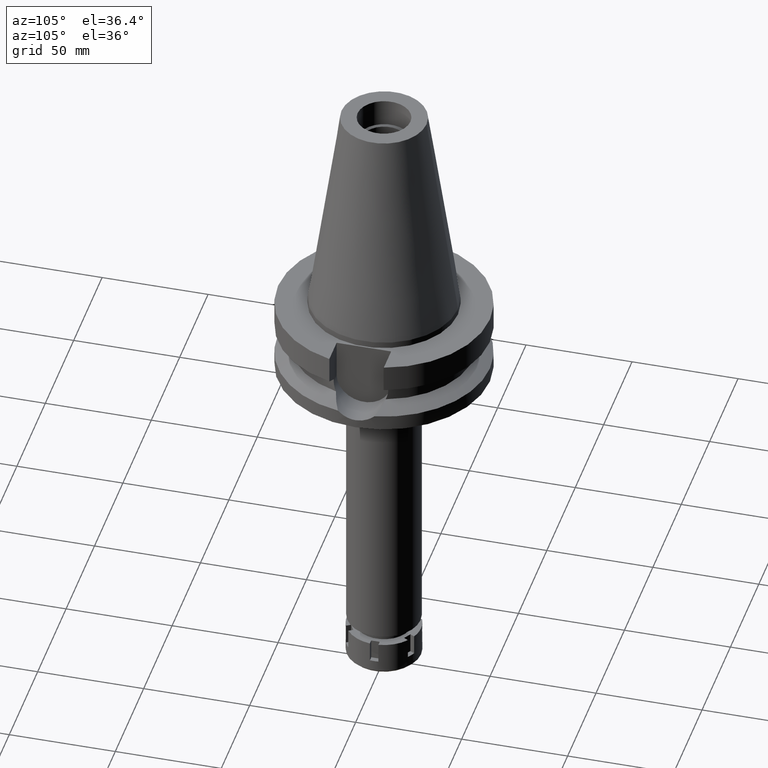
[diagram: clean part render]
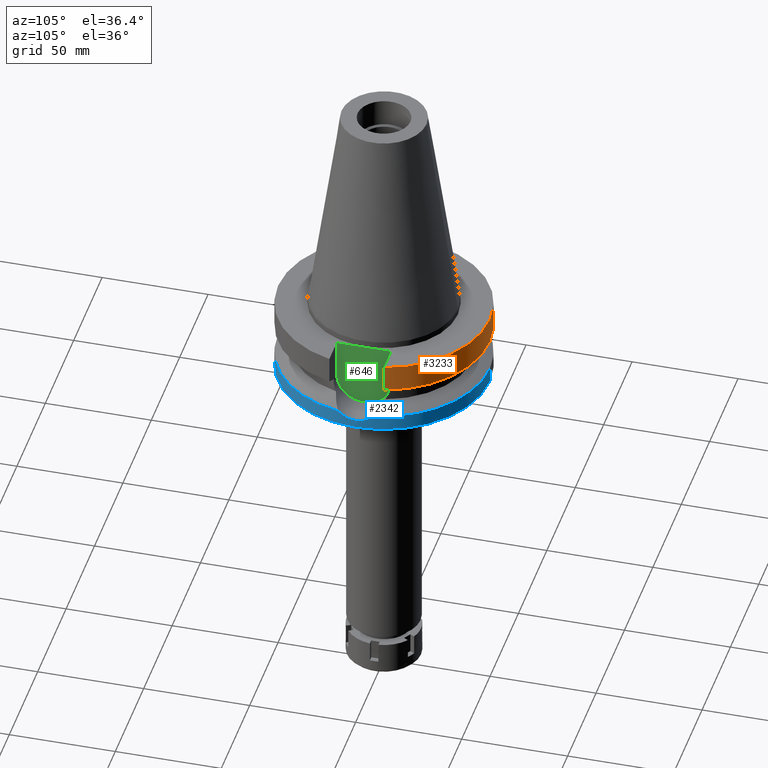
[diagram: same view with three faces highlighted in distinct colors, each labeled with its STEP entity id]
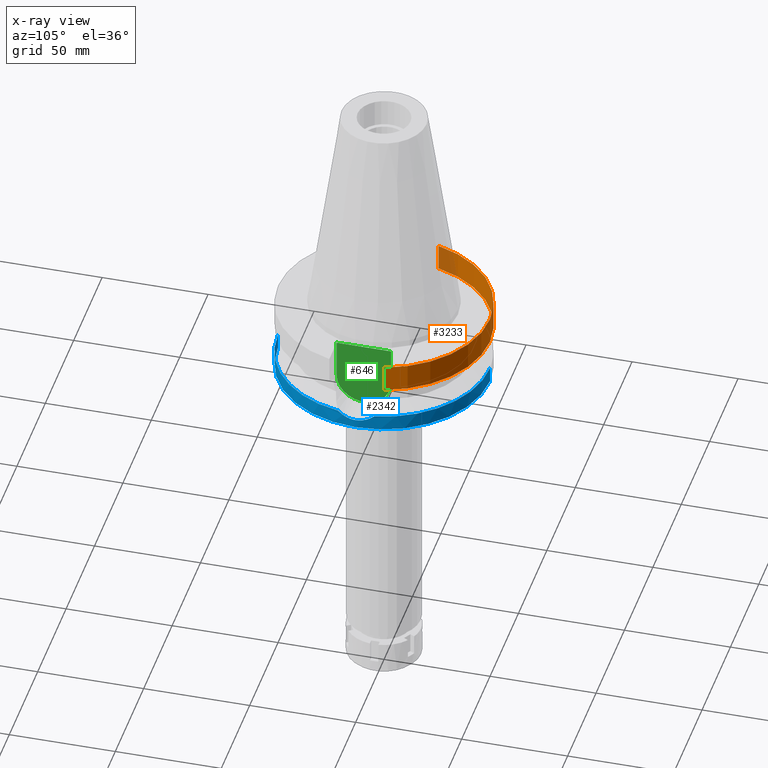
[diagram: x-ray of the same camera — body ghosted, the three highlighted faces saturated]
A machine part, auxiliary view with three faces highlighted in distinct colors.
The next image is the same camera in x-ray (body ghosted, the three faces saturated) — at least one of them is partly hidden behind the body in this view.
Their STEP definitions:

[orange] entity #3233 — the highlighted cylindrical surface (partial cylindrical patch) has radius 50 mm, axis along (0, 0, -1).
#74 = ORIENTED_EDGE ( 'NONE', *, *, #3637, .F. ) ;
#257 = CARTESIAN_POINT ( 'NONE',  ( 0.0000000000000000000, 2.651237855473999832E-14, -3.000000000000000000 ) ) ;
#475 = AXIS2_PLACEMENT_3D ( 'NONE', #2395, #619, #3532 ) ;
#539 = DIRECTION ( 'NONE',  ( 0.0000000000000000000, 0.0000000000000000000, -1.000000000000000000 ) ) ;
#583 = CARTESIAN_POINT ( 'NONE',  ( 48.32056912815000516, 12.85000385725999905, -15.66265768273000170 ) ) ;
#619 = DIRECTION ( 'NONE',  ( 0.0000000000000000000, 0.0000000000000000000, -1.000000000000000000 ) ) ;
#653 = ORIENTED_EDGE ( 'NONE', *, *, #3412, .T. ) ;
#658 = LINE ( 'NONE', #2091, #1279 ) ;
#725 = DIRECTION ( 'NONE',  ( 0.0000000000000000000, 1.000000000000000000, 0.0000000000000000000 ) ) ;
#900 = FACE_OUTER_BOUND ( 'NONE', #936, .T. ) ;
#936 = EDGE_LOOP ( 'NONE', ( #3657, #2021, #74, #653 ) ) ;
#1032 = VERTEX_POINT ( 'NONE', #3230 ) ;
#1034 = CARTESIAN_POINT ( 'NONE',  ( -48.32057015392000210, 12.84999999999999964, -3.000000000000000000 ) ) ;
#1183 = AXIS2_PLACEMENT_3D ( 'NONE', #2141, #3311, #725 ) ;
#1250 = VERTEX_POINT ( 'NONE', #1034 ) ;
#1255 = CYLINDRICAL_SURFACE ( 'NONE', #475, 50.00000000000000000 ) ;
#1260 = DIRECTION ( 'NONE',  ( 8.103406434828602822E-08, 3.047167049311851409E-07, -0.9999999999999503730 ) ) ;
#1279 = VECTOR ( 'NONE', #1260, 1000.000000000000114 ) ;
#1434 = CARTESIAN_POINT ( 'NONE',  ( 48.32056912815000516, 12.85000385725999905, -15.66265768273000170 ) ) ;
#1450 = DIRECTION ( 'NONE',  ( 8.100749521826603165E-08, -3.046167948962851084E-07, 0.9999999999999503730 ) ) ;
#1513 = VERTEX_POINT ( 'NONE', #1807 ) ;
#1807 = CARTESIAN_POINT ( 'NONE',  ( 48.32057015392000210, 12.84999999999999964, -3.000000000000000000 ) ) ;
#1870 = VERTEX_POINT ( 'NONE', #583 ) ;
#1906 = LINE ( 'NONE', #1434, #1955 ) ;
#1955 = VECTOR ( 'NONE', #1450, 1000.000000000000114 ) ;
#2021 = ORIENTED_EDGE ( 'NONE', *, *, #3541, .T. ) ;
#2091 = CARTESIAN_POINT ( 'NONE',  ( -48.32057015392000210, 12.84999999999999964, -3.000000000000000000 ) ) ;
#2141 = CARTESIAN_POINT ( 'NONE',  ( 0.0000000000000000000, 1.006319759053999930E-14, -15.66269223573000069 ) ) ;
#2165 = EDGE_CURVE ( 'NONE', #1250, #1032, #658, .T. ) ;
#2199 = DIRECTION ( 'NONE',  ( 0.0000000000000000000, 1.000000000000000000, 0.0000000000000000000 ) ) ;
#2395 = CARTESIAN_POINT ( 'NONE',  ( 0.0000000000000000000, 2.651237855473999832E-14, 116.4899999999999949 ) ) ;
#2434 = CIRCLE ( 'NONE', #1183, 50.00000000000000000 ) ;
#3230 = CARTESIAN_POINT ( 'NONE',  ( -48.32056912780999625, 12.85000385852000093, -15.66265767138999898 ) ) ;
#3233 = ADVANCED_FACE ( 'NONE', ( #900 ), #1255, .T. ) ;
#3311 = DIRECTION ( 'NONE',  ( 0.0000000000000000000, 0.0000000000000000000, 1.000000000000000000 ) ) ;
#3412 = EDGE_CURVE ( 'NONE', #1870, #1032, #2434, .T. ) ;
#3447 = AXIS2_PLACEMENT_3D ( 'NONE', #257, #539, #2199 ) ;
#3532 = DIRECTION ( 'NONE',  ( 0.0000000000000000000, -1.000000000000000000, 0.0000000000000000000 ) ) ;
#3541 = EDGE_CURVE ( 'NONE', #1250, #1513, #3566, .T. ) ;
#3566 = CIRCLE ( 'NONE', #3447, 50.00000000000000000 ) ;
#3637 = EDGE_CURVE ( 'NONE', #1870, #1513, #1906, .T. ) ;
#3657 = ORIENTED_EDGE ( 'NONE', *, *, #2165, .F. ) ;

[blue] entity #2342 — the highlighted cylindrical surface (partial cylindrical patch) has radius 50 mm, axis along (0, 0, -1).
#43 = EDGE_LOOP ( 'NONE', ( #1460, #1137, #1094, #2500, #2081, #1289, #3354 ) ) ;
#66 = CARTESIAN_POINT ( 'NONE',  ( 49.76773170150818260, -4.814189221242565431, -33.06456005433830825 ) ) ;
#85 = CARTESIAN_POINT ( 'NONE',  ( 49.38718223195836998, -7.838183010540669571, -31.37795962664149840 ) ) ;
#201 = VERTEX_POINT ( 'NONE', #3484 ) ;
#223 = CARTESIAN_POINT ( 'NONE',  ( 50.00000000000001421, 0.7411344755569528875, -34.00000000000000000 ) ) ;
#277 = CARTESIAN_POINT ( 'NONE',  ( 49.98260571909555949, 1.500791155632794416, -33.93572786721393442 ) ) ;
#314 = LINE ( 'NONE', #3665, #999 ) ;
#332 = DIRECTION ( 'NONE',  ( 0.0000000000000000000, -1.000000000000000000, 0.0000000000000000000 ) ) ;
#346 = CARTESIAN_POINT ( 'NONE',  ( 49.78968176231763465, -4.581260904491501584, -33.15560581003837370 ) ) ;
#478 = VECTOR ( 'NONE', #684, 1000.000000000000000 ) ;
#533 = CIRCLE ( 'NONE', #932, 50.00000000000000000 ) ;
#564 = EDGE_CURVE ( 'NONE', #858, #2772, #2179, .T. ) ;
#566 = DIRECTION ( 'NONE',  ( 0.0000000000000000000, 0.0000000000000000000, -1.000000000000000000 ) ) ;
#571 = CARTESIAN_POINT ( 'NONE',  ( 49.79167157622549666, 4.559534594611776015, -33.16387391772772020 ) ) ;
#592 = CARTESIAN_POINT ( 'NONE',  ( 49.38717941611994888, 7.838199223078202493, -31.37794515800011652 ) ) ;
#606 = CARTESIAN_POINT ( 'NONE',  ( 49.77976537357478293, -4.687973146015734116, -33.11444670168626914 ) ) ;
#607 = CARTESIAN_POINT ( 'NONE',  ( 49.93042287638220955, 2.648955485561525602, -33.73001242576225422 ) ) ;
#630 = CARTESIAN_POINT ( 'NONE',  ( 50.00000000000000000, -0.7411200681605115692, -34.00000000000000000 ) ) ;
#684 = DIRECTION ( 'NONE',  ( 0.0000000000000000000, -2.250196262218999978E-14, -1.000000000000000000 ) ) ;
#724 = CARTESIAN_POINT ( 'NONE',  ( 0.0000000000000000000, -50.00000000000000000, -30.73730776426999967 ) ) ;
#827 = CARTESIAN_POINT ( 'NONE',  ( 49.79881917393380775, 4.480667282867932144, -33.19355638855608248 ) ) ;
#856 = CARTESIAN_POINT ( 'NONE',  ( 49.49358279817711548, 7.117195281448393196, -31.87757442703206223 ) ) ;
#858 = VERTEX_POINT ( 'NONE', #2726 ) ;
#909 = CARTESIAN_POINT ( 'NONE',  ( 50.00000000000000000, 1.784861477417000026E-14, -34.00000000000000000 ) ) ;
#932 = AXIS2_PLACEMENT_3D ( 'NONE', #3192, #2974, #2666 ) ;
#954 = CARTESIAN_POINT ( 'NONE',  ( 49.26250064874000145, -8.556052234130000045, -30.73730776426999967 ) ) ;
#999 = VECTOR ( 'NONE', #2545, 1000.000000000000000 ) ;
#1009 = LINE ( 'NONE', #1321, #478 ) ;
#1033 = B_SPLINE_CURVE_WITH_KNOTS ( 'NONE', 3,
 ( #2770, #223, #277, #607, #1403, #2882, #1995, #3404, #2527, #827, #1425, #2511, #2218, #571, #1144, #3390, #856, #592, #1966 ),
 .UNSPECIFIED., .F., .F.,
 ( 4, 2, 2, 1, 1, 1, 1, 1, 2, 2, 2, 4 ),
 ( 0.0000000000000000000, 0.2499999999999735767, 0.3749999999999601430, 0.4374999999999533151, 0.4687499999999499845, 0.4843749999999483746, 0.4921874999999481526, 0.4960937499999479861, 0.4980468749999479861, 0.4999999999999479305, 0.7499999999999739098, 1.000000000000000000 ),
 .UNSPECIFIED. ) ;
#1089 = CARTESIAN_POINT ( 'NONE',  ( 0.0000000000000000000, 0.0000000000000000000, -30.73730776426999967 ) ) ;
#1094 = ORIENTED_EDGE ( 'NONE', *, *, #564, .T. ) ;
#1113 = DIRECTION ( 'NONE',  ( 0.0000000000000000000, 0.0000000000000000000, -1.000000000000000000 ) ) ;
#1137 = ORIENTED_EDGE ( 'NONE', *, *, #1725, .T. ) ;
#1144 = CARTESIAN_POINT ( 'NONE',  ( 49.73969140305771219, 5.128104573547205725, -32.94785015692511365 ) ) ;
#1151 = EDGE_CURVE ( 'NONE', #2189, #1593, #533, .T. ) ;
#1164 = AXIS2_PLACEMENT_3D ( 'NONE', #1089, #566, #2197 ) ;
#1182 = CARTESIAN_POINT ( 'NONE',  ( 49.62578926052089656, -6.100916815301578922, -32.46611871851167308 ) ) ;
#1200 = CARTESIAN_POINT ( 'NONE',  ( 49.75677467196931048, -4.924702406177010161, -33.01913543144370777 ) ) ;
#1272 = CARTESIAN_POINT ( 'NONE',  ( 49.26250064874000145, -8.556052234130000045, -30.73730776426999967 ) ) ;
#1275 = VERTEX_POINT ( 'NONE', #1272 ) ;
#1289 = ORIENTED_EDGE ( 'NONE', *, *, #2750, .F. ) ;
#1321 = CARTESIAN_POINT ( 'NONE',  ( 0.0000000000000000000, -50.00000000000000000, -30.73730776426999967 ) ) ;
#1403 = CARTESIAN_POINT ( 'NONE',  ( 49.90868002525166247, 3.033071862613983427, -33.64325143797999829 ) ) ;
#1425 = CARTESIAN_POINT ( 'NONE',  ( 49.79505876481736237, 4.522313403485289207, -33.17794514013029783 ) ) ;
#1452 = CARTESIAN_POINT ( 'NONE',  ( 49.78846270866008439, -4.594523424855490923, -33.15054213385935356 ) ) ;
#1460 = ORIENTED_EDGE ( 'NONE', *, *, #1877, .T. ) ;
#1511 = CARTESIAN_POINT ( 'NONE',  ( 49.66528726166652064, -5.772701196736823803, -32.63558093118592041 ) ) ;
#1515 = EDGE_CURVE ( 'NONE', #1275, #201, #2059, .T. ) ;
#1585 = AXIS2_PLACEMENT_3D ( 'NONE', #2536, #2281, #3672 ) ;
#1593 = VERTEX_POINT ( 'NONE', #2924 ) ;
#1725 = EDGE_CURVE ( 'NONE', #3107, #858, #1009, .T. ) ;
#1741 = CARTESIAN_POINT ( 'NONE',  ( 49.91304139983333243, -3.031509745432707348, -33.66147740621446616 ) ) ;
#1877 = EDGE_CURVE ( 'NONE', #1275, #3107, #2777, .T. ) ;
#1966 = CARTESIAN_POINT ( 'NONE',  ( 49.26250064874000145, 8.556052234130000045, -30.73730776426999967 ) ) ;
#1995 = CARTESIAN_POINT ( 'NONE',  ( 49.84834361336439201, 3.896014778068053630, -33.39804380112810378 ) ) ;
#2015 = CARTESIAN_POINT ( 'NONE',  ( 49.71768142624588194, -5.302013673065737009, -32.85645924774143367 ) ) ;
#2059 = B_SPLINE_CURVE_WITH_KNOTS ( 'NONE', 3,
 ( #954, #85, #2956, #1182, #1511, #2015, #3236, #1200, #66, #606, #3457, #1452, #346, #2372, #3183, #2647, #1741, #3513, #630, #909 ),
 .UNSPECIFIED., .F., .F.,
 ( 4, 2, 2, 2, 1, 1, 1, 1, 2, 2, 2, 4 ),
 ( 0.0000000000000000000, 0.2500000000000708322, 0.3750000000001056932, 0.4375000000001235123, 0.4687500000001323941, 0.4843750000001363909, 0.4921875000001385558, 0.4960937500001394995, 0.4980468750001392775, 0.5000000000001389999, 0.7500000000000695000, 1.000000000000000000 ),
 .UNSPECIFIED. ) ;
#2081 = ORIENTED_EDGE ( 'NONE', *, *, #1151, .T. ) ;
#2179 = CIRCLE ( 'NONE', #1585, 50.00000000000000000 ) ;
#2189 = VERTEX_POINT ( 'NONE', #2679 ) ;
#2197 = DIRECTION ( 'NONE',  ( 0.9852500129747439050, -0.1711210446826074982, 0.0000000000000000000 ) ) ;
#2218 = CARTESIAN_POINT ( 'NONE',  ( 49.79235471004053437, 4.552050085695237946, -33.16671254725967799 ) ) ;
#2274 = CARTESIAN_POINT ( 'NONE',  ( 0.0000000000000000000, 2.651237855473999832E-14, 116.4899999999999949 ) ) ;
#2281 = DIRECTION ( 'NONE',  ( 0.0000000000000000000, 0.0000000000000000000, 1.000000000000000000 ) ) ;
#2342 = ADVANCED_FACE ( 'NONE', ( #3687 ), #2814, .T. ) ;
#2372 = CARTESIAN_POINT ( 'NONE',  ( 49.79049223401477064, -4.572427591324562002, -33.15897282298296034 ) ) ;
#2500 = ORIENTED_EDGE ( 'NONE', *, *, #2771, .F. ) ;
#2511 = CARTESIAN_POINT ( 'NONE',  ( 49.79343760594647250, 4.540156166081057876, -33.17121135384211073 ) ) ;
#2527 = CARTESIAN_POINT ( 'NONE',  ( 49.80625081250381925, 4.397324401717709996, -33.22437557485738324 ) ) ;
#2536 = CARTESIAN_POINT ( 'NONE',  ( 0.0000000000000000000, 2.651237855473999832E-14, -38.00000000000000000 ) ) ;
#2545 = DIRECTION ( 'NONE',  ( 0.0000000000000000000, 2.152361642122000014E-14, -1.000000000000000000 ) ) ;
#2647 = CARTESIAN_POINT ( 'NONE',  ( 49.86086623973334753, -3.802647964326340002, -33.45142282165367220 ) ) ;
#2666 = DIRECTION ( 'NONE',  ( 0.0000000000000000000, 1.000000000000000000, 0.0000000000000000000 ) ) ;
#2679 = CARTESIAN_POINT ( 'NONE',  ( 0.0000000000000000000, 50.00000000000000000, -30.73730776426999967 ) ) ;
#2726 = CARTESIAN_POINT ( 'NONE',  ( 0.0000000000000000000, -50.00000000000000000, -38.00000000000000000 ) ) ;
#2750 = EDGE_CURVE ( 'NONE', #201, #1593, #1033, .T. ) ;
#2770 = CARTESIAN_POINT ( 'NONE',  ( 50.00000000000000000, 1.784861477417000026E-14, -34.00000000000000000 ) ) ;
#2771 = EDGE_CURVE ( 'NONE', #2189, #2772, #314, .T. ) ;
#2772 = VERTEX_POINT ( 'NONE', #3132 ) ;
#2777 = CIRCLE ( 'NONE', #1164, 50.00000000000000000 ) ;
#2778 = AXIS2_PLACEMENT_3D ( 'NONE', #2274, #1113, #332 ) ;
#2814 = CYLINDRICAL_SURFACE ( 'NONE', #2778, 50.00000000000000000 ) ;
#2882 = CARTESIAN_POINT ( 'NONE',  ( 49.86954289321666778, 3.608495417701580887, -33.48453890198249638 ) ) ;
#2924 = CARTESIAN_POINT ( 'NONE',  ( 49.26250064874000145, 8.556052234130000045, -30.73730776426999967 ) ) ;
#2956 = CARTESIAN_POINT ( 'NONE',  ( 49.49358958280588894, -7.117144943669853951, -31.87761218564103771 ) ) ;
#2974 = DIRECTION ( 'NONE',  ( 0.0000000000000000000, 0.0000000000000000000, -1.000000000000000000 ) ) ;
#3107 = VERTEX_POINT ( 'NONE', #724 ) ;
#3132 = CARTESIAN_POINT ( 'NONE',  ( 0.0000000000000000000, 50.00000000000000000, -38.00000000000000000 ) ) ;
#3183 = CARTESIAN_POINT ( 'NONE',  ( 49.79075586834895972, -4.569551829111532015, -33.16006813157581234 ) ) ;
#3192 = CARTESIAN_POINT ( 'NONE',  ( 0.0000000000000000000, 0.0000000000000000000, -30.73730776426999967 ) ) ;
#3236 = CARTESIAN_POINT ( 'NONE',  ( 49.73400400824914414, -5.148705446761065119, -32.92453230238565709 ) ) ;
#3354 = ORIENTED_EDGE ( 'NONE', *, *, #1515, .F. ) ;
#3390 = CARTESIAN_POINT ( 'NONE',  ( 49.66983879164600779, 5.762335365603226123, -32.66220278209613070 ) ) ;
#3404 = CARTESIAN_POINT ( 'NONE',  ( 49.82075737099248158, 4.230447167580822843, -33.28440370200681286 ) ) ;
#3457 = CARTESIAN_POINT ( 'NONE',  ( 49.78559482734255681, -4.625556967520964236, -33.13863445799344021 ) ) ;
#3484 = CARTESIAN_POINT ( 'NONE',  ( 50.00000000000000000, 1.784861477417000026E-14, -34.00000000000000000 ) ) ;
#3513 = CARTESIAN_POINT ( 'NONE',  ( 49.98260827996666933, -1.500739276010107259, -33.93573032127258671 ) ) ;
#3665 = CARTESIAN_POINT ( 'NONE',  ( 0.0000000000000000000, 50.00000000000000000, -30.73730776426999967 ) ) ;
#3672 = DIRECTION ( 'NONE',  ( 0.0000000000000000000, -1.000000000000000000, 0.0000000000000000000 ) ) ;
#3687 = FACE_OUTER_BOUND ( 'NONE', #43, .T. ) ;

[green] entity #646 — the highlighted planar face has unit normal (1, 0, 0).
#27 = VECTOR ( 'NONE', #3407, 1000.000000000000000 ) ;
#107 = CARTESIAN_POINT ( 'NONE',  ( 35.39999999999999858, 12.84999999999999964, -3.000000000000000000 ) ) ;
#116 = ORIENTED_EDGE ( 'NONE', *, *, #3577, .F. ) ;
#308 = PLANE ( 'NONE',  #3619 ) ;
#359 = VERTEX_POINT ( 'NONE', #983 ) ;
#513 = CARTESIAN_POINT ( 'NONE',  ( 35.39999999999999858, -12.84999999999999964, -3.000000000000000000 ) ) ;
#553 = DIRECTION ( 'NONE',  ( 1.000000000000000000, 0.0000000000000000000, 0.0000000000000000000 ) ) ;
#555 = DIRECTION ( 'NONE',  ( 0.0000000000000000000, 0.0000000000000000000, 1.000000000000000000 ) ) ;
#640 = EDGE_CURVE ( 'NONE', #359, #2272, #1710, .T. ) ;
#646 = ADVANCED_FACE ( 'NONE', ( #3454 ), #308, .T. ) ;
#670 = VERTEX_POINT ( 'NONE', #107 ) ;
#983 = CARTESIAN_POINT ( 'NONE',  ( 35.39999999999999858, 12.84999999999999964, -21.14999999999999858 ) ) ;
#1199 = EDGE_CURVE ( 'NONE', #670, #359, #1910, .T. ) ;
#1271 = ORIENTED_EDGE ( 'NONE', *, *, #640, .F. ) ;
#1371 = EDGE_LOOP ( 'NONE', ( #116, #1271, #3518, #1959 ) ) ;
#1432 = DIRECTION ( 'NONE',  ( 0.0000000000000000000, 1.000000000000000000, 0.0000000000000000000 ) ) ;
#1449 = DIRECTION ( 'NONE',  ( -1.000000000000000000, 0.0000000000000000000, 0.0000000000000000000 ) ) ;
#1630 = DIRECTION ( 'NONE',  ( 0.0000000000000000000, 0.0000000000000000000, -1.000000000000000000 ) ) ;
#1710 = CIRCLE ( 'NONE', #2233, 12.84999999999999964 ) ;
#1890 = VECTOR ( 'NONE', #1630, 1000.000000000000000 ) ;
#1910 = LINE ( 'NONE', #2126, #1890 ) ;
#1959 = ORIENTED_EDGE ( 'NONE', *, *, #2381, .T. ) ;
#1999 = LINE ( 'NONE', #2259, #27 ) ;
#2022 = VERTEX_POINT ( 'NONE', #513 ) ;
#2126 = CARTESIAN_POINT ( 'NONE',  ( 35.39999999999999858, 12.84999999999999964, -3.000000000000000000 ) ) ;
#2214 = CARTESIAN_POINT ( 'NONE',  ( 35.39999999999999858, -12.84999999999999964, -21.14999999999999858 ) ) ;
#2233 = AXIS2_PLACEMENT_3D ( 'NONE', #2249, #1449, #3127 ) ;
#2249 = CARTESIAN_POINT ( 'NONE',  ( 35.39999999999999858, 0.0000000000000000000, -21.14999999999999858 ) ) ;
#2251 = LINE ( 'NONE', #2214, #2495 ) ;
#2259 = CARTESIAN_POINT ( 'NONE',  ( 35.39999999999999858, 12.84999999999999964, -3.000000000000000000 ) ) ;
#2272 = VERTEX_POINT ( 'NONE', #3583 ) ;
#2381 = EDGE_CURVE ( 'NONE', #670, #2022, #1999, .T. ) ;
#2495 = VECTOR ( 'NONE', #555, 1000.000000000000000 ) ;
#3115 = CARTESIAN_POINT ( 'NONE',  ( 35.39999999999999858, 0.0000000000000000000, 0.0000000000000000000 ) ) ;
#3127 = DIRECTION ( 'NONE',  ( 0.0000000000000000000, 1.000000000000000000, 0.0000000000000000000 ) ) ;
#3407 = DIRECTION ( 'NONE',  ( 0.0000000000000000000, -1.000000000000000000, 0.0000000000000000000 ) ) ;
#3454 = FACE_OUTER_BOUND ( 'NONE', #1371, .T. ) ;
#3518 = ORIENTED_EDGE ( 'NONE', *, *, #1199, .F. ) ;
#3577 = EDGE_CURVE ( 'NONE', #2272, #2022, #2251, .T. ) ;
#3583 = CARTESIAN_POINT ( 'NONE',  ( 35.39999999999999858, -12.84999999999999964, -21.14999999999999858 ) ) ;
#3619 = AXIS2_PLACEMENT_3D ( 'NONE', #3115, #553, #1432 ) ;